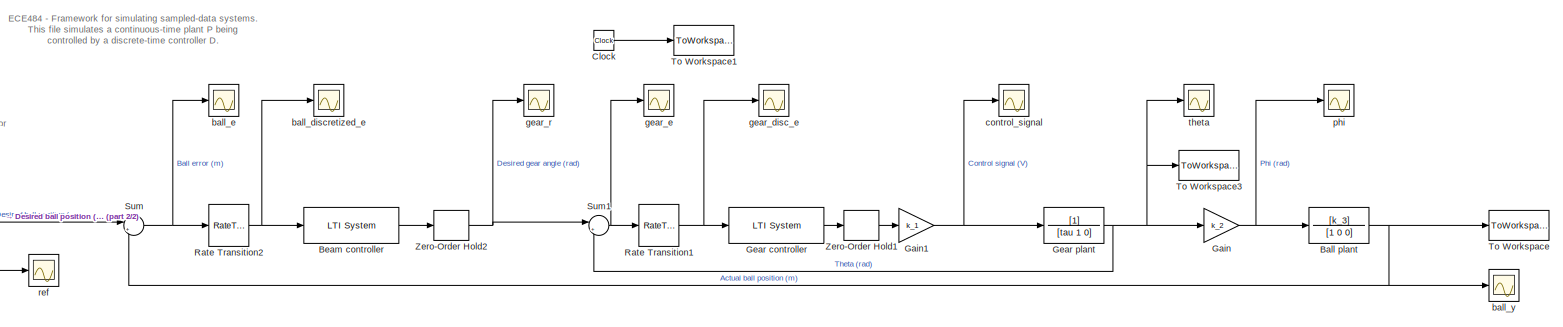
[diagram: root canvas - part 1/2, most of the canvas]
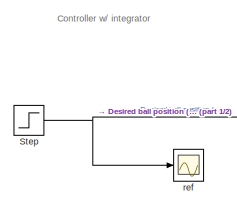
[diagram: root canvas - part 2/2, middle left region]
MODEL slx_f25795e0199d
KIND model
CONFIG AbsTol = 1e-12
CONFIG EnableMultiTasking = on
CONFIG FixedStep = T
CONFIG MaxStep = 0.01
CONFIG MinStep = auto
CONFIG RelTol = 1e-12
CONFIG SampleTimeConstraint = Unconstrained
CONFIG SolverName = ode45
CONFIG StartTime = 0.0
CONFIG StopTime = 15
BLOCK [TransferFcn] Ball plant
  Denominator = [1 0 0]
  Numerator = [k_3]
BLOCK [Reference] Beam controller  REF=cstblocks/LTI System
  SourceBlock = cstblocks/LTI System
  SourceType = LTI Block
BLOCK [Clock] Clock
BLOCK [Gain] Gain
  Gain = k_2
BLOCK [Gain] Gain1
  Gain = k_1
BLOCK [Reference] Gear controller  REF=cstblocks/LTI System
  SourceBlock = cstblocks/LTI System
  SourceType = LTI Block
BLOCK [TransferFcn] Gear plant
  Denominator = [tau 1 0]
BLOCK [RateTransition] Rate Transition1
  OutPortSampleTime = gear_T
BLOCK [RateTransition] Rate Transition2
  OutPortSampleTime = gear_T
BLOCK [Step] Step
  After = 0.25
  Before = 0.1
  SampleTime = beam_T
  Time = 0
BLOCK [Sum] Sum
  Inputs = |+-
BLOCK [Sum] Sum1
  Inputs = |+-
BLOCK [ToWorkspace] To Workspace
  MaxDataPoints = inf
  SampleTime = -1
  VariableName = y_sim
BLOCK [ToWorkspace] To Workspace1
  MaxDataPoints = inf
  SampleTime = -1
  VariableName = t_sim
BLOCK [ToWorkspace] To Workspace3
  MaxDataPoints = inf
  SampleTime = -1
  VariableName = u_sim
BLOCK [ZeroOrderHold] Zero-Order Hold1
  SampleTime = gear_T
BLOCK [ZeroOrderHold] Zero-Order Hold2
  SampleTime = beam_T
BLOCK [Scope] ball_discretized_e
  ActiveDisplayYMaximum = 0.297524365864806
  ActiveDisplayYMinimum = -0.17771929278325427
  DataLoggingDecimateData = on
  DataLoggingDecimation = 1
  DataLoggingSaveFormat = Structure With Time
  DataLoggingVariableName = ScopeData1
  Floating = off
  GraphicalSettings = {"Style":{"BackgroundColor":[0.12941176470588237,0.12941176470588237,0.12941176470588237],"AxesColor":[0.07058823529411765,0.07058823529411765,0.07058823529411765],"LabelsColor":[0.8509803921568627,0.8509803921568627,0.8509803921568627],"PreserveColors":false,"Visible":[true],"LineStyle":["-"],"LineWidth":[0.5],"BarWidth":[0.9],"LineColor":[[1,1,0]],"LineFaceAlpha":[1],"LineEdgeAlpha":[1],"Marker"...<+1909ch>
  MultipleDisplayCache = [{"MaxYLimMag":0.297524365864806,"MaxYLimReal":0.297524365864806,"MinYLimMag":0,"MinYLimReal":-0.17771929278325427,"PlotAsMagnitudePhase":false,"ShowGrid":true,"ShowLegend":false,"Title":"%<SignalLabel>","YLabel":""}]
  NumInputPorts = 1
  ScopeFrameLocation = window
  WasSavedAsWebScope = on
  WindowPosition = [917.000000,460.000000,560.000000,420.000000,]
BLOCK [Scope] ball_e
  ActiveDisplayYMaximum = 0.29453546800834873
  ActiveDisplayYMinimum = -0.1508192120751386
  DataLoggingDecimateData = on
  DataLoggingDecimation = 1
  DataLoggingSaveFormat = Structure With Time
  DataLoggingVariableName = ScopeData1
  Floating = off
  GraphicalSettings = {"Style":{"BackgroundColor":[0.12941176470588237,0.12941176470588237,0.12941176470588237],"AxesColor":[0.07058823529411765,0.07058823529411765,0.07058823529411765],"LabelsColor":[0.8509803921568627,0.8509803921568627,0.8509803921568627],"PreserveColors":false,"Visible":[true],"LineStyle":["-"],"LineWidth":[0.5],"BarWidth":[0.9],"LineColor":[[1,1,0]],"LineFaceAlpha":[1],"LineEdgeAlpha":[1],"Marker"...<+1963ch>
  MultipleDisplayCache = [{"MaxYLimMag":0.29453546800834873,"MaxYLimReal":0.29453546800834873,"MinYLimMag":0,"MinYLimReal":-0.1508192120751386,"PlotAsMagnitudePhase":false,"ShowGrid":true,"ShowLegend":false,"Title":"%<SignalLabel>","YLabel":""}]
  NumInputPorts = 1
  ScopeFrameLocation = window
  WasSavedAsWebScope = on
  WindowPosition = [917.000000,460.000000,560.000000,420.000000,]
BLOCK [Scope] ball_y
  ActiveDisplayYMaximum = 0.41033394929584704
  ActiveDisplayYMinimum = -0.0679732294513794
  DataLoggingDecimateData = on
  DataLoggingDecimation = 1
  DataLoggingSaveFormat = Structure With Time
  DataLoggingVariableName = ScopeData2
  Floating = off
  GraphicalSettings = {"Style":{"BackgroundColor":[0.12941176470588237,0.12941176470588237,0.12941176470588237],"AxesColor":[0.07058823529411765,0.07058823529411765,0.07058823529411765],"LabelsColor":[0.8509803921568627,0.8509803921568627,0.8509803921568627],"PreserveColors":false,"Visible":[true],"LineStyle":["-"],"LineWidth":[0.5],"BarWidth":[0.9],"LineColor":[[1,1,0]],"LineFaceAlpha":[1],"LineEdgeAlpha":[1],"Marker"...<+2050ch>
  MultipleDisplayCache = [{"MaxYLimMag":0.3904548397936542,"MaxYLimReal":0.41033394929584704,"MinYLimMag":0,"MinYLimReal":-0.0679732294513794,"PlotAsMagnitudePhase":false,"ShowGrid":true,"ShowLegend":false,"Title":"%<SignalLabel>","YLabel":""}]
  NumInputPorts = 1
  ScopeFrameLocation = window
  WasSavedAsWebScope = on
  WindowPosition = [758.000000,178.000000,640.000000,568.000000,]
BLOCK [Scope] control_signal
  ActiveDisplayYMaximum = 22.704310447758754
  ActiveDisplayYMinimum = -18.52737587654768
  DataLoggingDecimateData = on
  DataLoggingDecimation = 1
  DataLoggingSaveFormat = Structure With Time
  DataLoggingVariableName = ScopeData8
  Floating = off
  GraphicalSettings = {"Style":{"BackgroundColor":[0.12941176470588237,0.12941176470588237,0.12941176470588237],"AxesColor":[0.07058823529411765,0.07058823529411765,0.07058823529411765],"LabelsColor":[0.8509803921568627,0.8509803921568627,0.8509803921568627],"PreserveColors":false,"Visible":[true],"LineStyle":["-"],"LineWidth":[0.5],"BarWidth":[0.9],"LineColor":[[1,1,0]],"LineFaceAlpha":[1],"LineEdgeAlpha":[1],"Marker"...<+1985ch>
  MultipleDisplayCache = [{"MaxYLimMag":22.704310447758754,"MaxYLimReal":22.704310447758754,"MinYLimMag":0,"MinYLimReal":-18.52737587654768,"PlotAsMagnitudePhase":false,"ShowGrid":true,"ShowLegend":false,"Title":"%<SignalLabel>","YLabel":""}]
  NumInputPorts = 1
  ScopeFrameLocation = window
  WasSavedAsWebScope = on
  WindowPosition = [32.000000,102.000000,853.000000,832.000000,]
BLOCK [Scope] gear_disc_e
  ActiveDisplayYMaximum = 20.79205
  ActiveDisplayYMinimum = -15.91123
  DataLoggingDecimateData = on
  DataLoggingDecimation = 1
  DataLoggingSaveFormat = Structure With Time
  DataLoggingVariableName = ScopeData4
  Floating = off
  GraphicalSettings = {"Style":{"BackgroundColor":[0.12941176470588237,0.12941176470588237,0.12941176470588237],"AxesColor":[0.07058823529411765,0.07058823529411765,0.07058823529411765],"LabelsColor":[0.8509803921568627,0.8509803921568627,0.8509803921568627],"PreserveColors":false,"Visible":[true],"LineStyle":["-"],"LineWidth":[0.5],"BarWidth":[0.9],"LineColor":[[1,1,0]],"LineFaceAlpha":[1],"LineEdgeAlpha":[1],"Marker"...<+2191ch>
  MultipleDisplayCache = [{"MaxYLimMag":10,"MaxYLimReal":20.79205,"MinYLimMag":0,"MinYLimReal":-15.91123,"PlotAsMagnitudePhase":false,"ShowGrid":true,"ShowLegend":false,"Title":"%<SignalLabel>","YLabel":""}]
  NumInputPorts = 1
  ScopeFrameLocation = window
  WasSavedAsWebScope = on
  WindowPosition = [680.000000,330.000000,560.000000,420.000000,]
BLOCK [Scope] gear_e
  ActiveDisplayYMaximum = 1.9001671096698076
  ActiveDisplayYMinimum = -1.4888648419330779
  DataLoggingDecimateData = on
  DataLoggingDecimation = 1
  DataLoggingSaveFormat = Structure With Time
  DataLoggingVariableName = ScopeData7
  Floating = off
  GraphicalSettings = {"Style":{"BackgroundColor":[0.12941176470588237,0.12941176470588237,0.12941176470588237],"AxesColor":[0.07058823529411765,0.07058823529411765,0.07058823529411765],"LabelsColor":[0.8509803921568627,0.8509803921568627,0.8509803921568627],"PreserveColors":false,"Visible":[true],"LineStyle":["-"],"LineWidth":[0.5],"BarWidth":[0.9],"LineColor":[[1,1,0]],"LineFaceAlpha":[1],"LineEdgeAlpha":[1],"Marker"...<+2182ch>
  MultipleDisplayCache = [{"MaxYLimMag":1.9001671096698076,"MaxYLimReal":1.9001671096698076,"MinYLimMag":0,"MinYLimReal":-1.4888648419330779,"PlotAsMagnitudePhase":false,"ShowGrid":true,"ShowLegend":false,"Title":"%<SignalLabel>","YLabel":""}]
  NumInputPorts = 1
  ScopeFrameLocation = window
  WasSavedAsWebScope = on
  WindowPosition = [680.000000,330.000000,560.000000,420.000000,]
BLOCK [Scope] gear_r
  ActiveDisplayYMaximum = 1.402834664808936
  ActiveDisplayYMinimum = -1.4336056813929809
  DataLoggingDecimateData = on
  DataLoggingDecimation = 1
  DataLoggingSaveFormat = Structure With Time
  Floating = off
  GraphicalSettings = {"Style":{"BackgroundColor":[0.12941176470588237,0.12941176470588237,0.12941176470588237],"AxesColor":[0.07058823529411765,0.07058823529411765,0.07058823529411765],"LabelsColor":[0.8509803921568627,0.8509803921568627,0.8509803921568627],"PreserveColors":false,"Visible":[true],"LineStyle":["-"],"LineWidth":[0.5],"BarWidth":[0.9],"LineColor":[[1,1,0]],"LineFaceAlpha":[1],"LineEdgeAlpha":[1],"Marker"...<+1995ch>
  MultipleDisplayCache = [{"MaxYLimMag":1.4336056813929809,"MaxYLimReal":1.402834664808936,"MinYLimMag":0,"MinYLimReal":-1.4336056813929809,"PlotAsMagnitudePhase":false,"ShowGrid":true,"ShowLegend":false,"Title":"%<SignalLabel>","YLabel":""}]
  NumInputPorts = 1
  ScopeFrameLocation = window
  WasSavedAsWebScope = on
  WindowPosition = [917.000000,460.000000,560.000000,420.000000,]
BLOCK [Scope] phi
  ActiveDisplayYMaximum = 0.077988379870732927
  ActiveDisplayYMinimum = -0.09609099624241621
  DataLoggingDecimateData = on
  DataLoggingDecimation = 1
  DataLoggingSaveFormat = Structure With Time
  DataLoggingVariableName = ScopeData6
  Floating = off
  GraphicalSettings = {"Style":{"BackgroundColor":[0.12941176470588237,0.12941176470588237,0.12941176470588237],"AxesColor":[0.07058823529411765,0.07058823529411765,0.07058823529411765],"LabelsColor":[0.8509803921568627,0.8509803921568627,0.8509803921568627],"PreserveColors":false,"Visible":[true],"LineStyle":["-"],"LineWidth":[0.5],"BarWidth":[0.9],"LineColor":[[1,1,0]],"LineFaceAlpha":[1],"LineEdgeAlpha":[1],"Marker"...<+2256ch>
  MultipleDisplayCache = [{"MaxYLimMag":0.09609099624241621,"MaxYLimReal":0.077988379870732927,"MinYLimMag":0,"MinYLimReal":-0.09609099624241621,"PlotAsMagnitudePhase":false,"ShowGrid":true,"ShowLegend":false,"Title":"%<SignalLabel>","YLabel":""}]
  NumInputPorts = 1
  ScopeFrameLocation = window
  WasSavedAsWebScope = on
  WindowPosition = [142.000000,309.000000,560.000000,420.000000,]
BLOCK [Scope] ref
  ActiveDisplayYMaximum = 0.35
  ActiveDisplayYMinimum = 0.15
  DataLoggingDecimateData = on
  DataLoggingDecimation = 1
  DataLoggingSaveFormat = Structure With Time
  DataLoggingVariableName = ScopeData3
  Floating = off
  GraphicalSettings = {"Style":{"BackgroundColor":[0.12941176470588237,0.12941176470588237,0.12941176470588237],"AxesColor":[0.07058823529411765,0.07058823529411765,0.07058823529411765],"LabelsColor":[0.8509803921568627,0.8509803921568627,0.8509803921568627],"PreserveColors":false,"Visible":[true],"LineStyle":["-"],"LineWidth":[0.5],"BarWidth":[0.9],"LineColor":[[1,1,0]],"LineFaceAlpha":[1],"LineEdgeAlpha":[1],"Marker"...<+1923ch>
  MultipleDisplayCache = [{"MaxYLimMag":0.35,"MaxYLimReal":0.35,"MinYLimMag":0.15,"MinYLimReal":0.15,"PlotAsMagnitudePhase":false,"ShowGrid":true,"ShowLegend":false,"Title":"%<SignalLabel>","YLabel":""}]
  NumInputPorts = 1
  ScopeFrameLocation = window
  WasSavedAsWebScope = on
  WindowPosition = [917.000000,460.000000,560.000000,420.000000,]
BLOCK [Scope] theta
  ActiveDisplayYMaximum = 1.4287990829574659
  ActiveDisplayYMinimum = -1.5940800424194972
  DataLoggingDecimateData = on
  DataLoggingDecimation = 1
  DataLoggingSaveFormat = Structure With Time
  DataLoggingVariableName = ScopeData5
  Floating = off
  GraphicalSettings = {"Style":{"BackgroundColor":[0.12941176470588237,0.12941176470588237,0.12941176470588237],"AxesColor":[0.07058823529411765,0.07058823529411765,0.07058823529411765],"LabelsColor":[0.8509803921568627,0.8509803921568627,0.8509803921568627],"PreserveColors":false,"Visible":[true],"LineStyle":["-"],"LineWidth":[0.5],"BarWidth":[0.9],"LineColor":[[1,1,0]],"LineFaceAlpha":[1],"LineEdgeAlpha":[1],"Marker"...<+1973ch>
  MultipleDisplayCache = [{"MaxYLimMag":1.5940800424194972,"MaxYLimReal":1.4287990829574659,"MinYLimMag":0,"MinYLimReal":-1.5940800424194972,"PlotAsMagnitudePhase":false,"ShowGrid":true,"ShowLegend":false,"Title":"%<SignalLabel>","YLabel":""}]
  NumInputPorts = 1
  ScopeFrameLocation = window
  Visible = on
  WasSavedAsWebScope = on
  WindowPosition = [915.000000,510.000000,560.000000,420.000000,]
ANNOTATION (root): Controller w/ integrator
ANNOTATION (root): ECE484 - Framework for simulating sampled-data systems. This file simulates a continuous-time plant P being controlled by a discrete-time controller D.
NET Ball plant:1 -> Sum:2, To Workspace:1, ball_y:1
LINE Beam controller:1 -> Zero-Order Hold2:1
LINE Clock:1 -> To Workspace1:1
NET Gain1:1 -> Gear plant:1, control_signal:1
NET Gain:1 -> Ball plant:1, phi:1
LINE Gear controller:1 -> Zero-Order Hold1:1
NET Gear plant:1 -> Gain:1, Sum1:2, To Workspace3:1, theta:1
NET Rate Transition1:1 -> Gear controller:1, gear_disc_e:1
NET Rate Transition2:1 -> Beam controller:1, ball_discretized_e:1
NET Step:1 -> Sum:1, ref:1
NET Sum1:1 -> Rate Transition1:1, gear_e:1
NET Sum:1 -> Rate Transition2:1, ball_e:1
LINE Zero-Order Hold1:1 -> Gain1:1
NET Zero-Order Hold2:1 -> Sum1:1, gear_r:1
note: NET lines group one-source signal fan-out (src -> all destinations, sorted); 1:1 wires keep LINE
